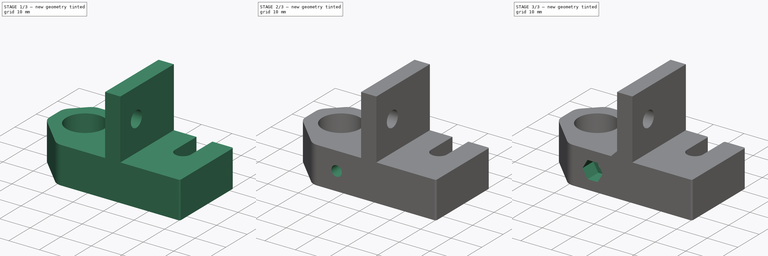
[diagram: build sequence overview — one tinted view per stage of 3, left to right]
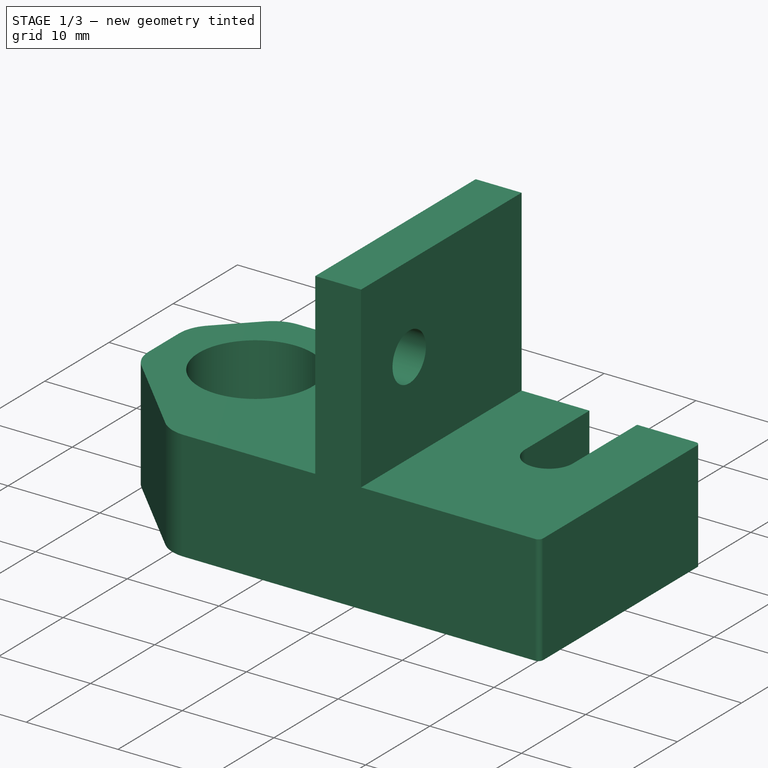
[diagram: stage 1 of 3 — iso view after this stage's code; geometry added in this stage tinted green]
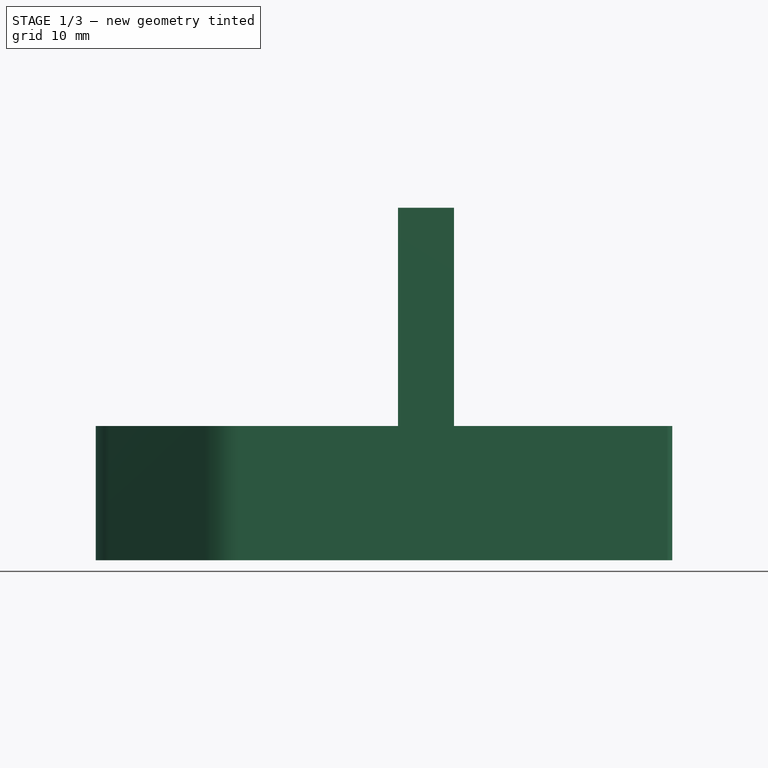
[diagram: stage 1 of 3 — front view after this stage's code; geometry added in this stage tinted green]
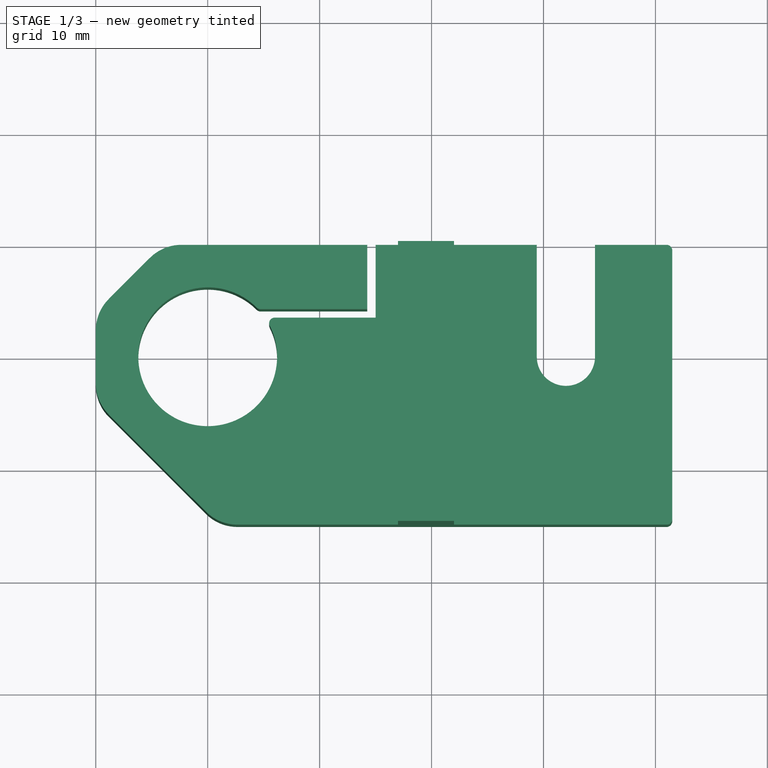
[diagram: stage 1 of 3 — top view after this stage's code; geometry added in this stage tinted green]
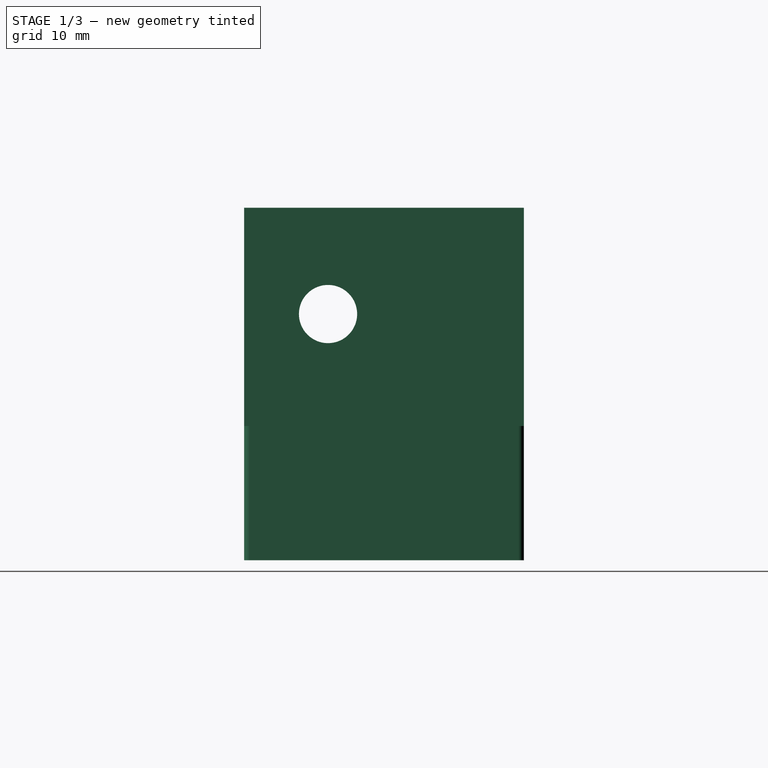
[diagram: stage 1 of 3 — right view after this stage's code; geometry added in this stage tinted green]
FCSTD DOCUMENT  (FreeCAD 0.17R13387 (Git))
Label: Rod12_holder_left_2020
License: All rights reserved
LicenseURL: http://en.wikipedia.org/wiki/All_rights_reserved
objects: Sketcher::SketchObject×6, PartDesign::Pocket×5, PartDesign::Pad×1, PartDesign::Chamfer×1, PartDesign::Fillet×1, PartDesign::Body×1
note: 21 computed .brp shape members not serialized (recipe doc carries the construction recipe); baked Part::Feature solids carry a one-line shape summary decoded from their .brp

FEATURE [Sketcher::SketchObject] Sketch
  sketch-geometry (25):
    g0: ArcOfCircle CenterX=2.65685 CenterY=-11 CenterZ=0 NormalX=0 NormalY=0 NormalZ=1 AngleXU=-1.9635 Radius=4 StartAngle=5.89049 EndAngle=6.67588
    g1: LineSegment StartX=-8.82843 StartY=-5.17157 StartZ=0 EndX=-0.171573 EndY=-13.8284 EndZ=0
    g2: ArcOfCircle CenterX=-6 CenterY=-2.34315 CenterZ=0 NormalX=0 NormalY=0 NormalZ=1 AngleXU=-2.74889 Radius=4 StartAngle=5.89049 EndAngle=6.67588
    g3: LineSegment StartX=-10 StartY=-2.34315 StartZ=0 EndX=-10 EndY=2.34315 EndZ=0
    g4: ArcOfCircle CenterX=-6 CenterY=2.34315 CenterZ=0 NormalX=0 NormalY=0 NormalZ=1 AngleXU=2.74889 Radius=4 StartAngle=5.89049 EndAngle=6.67588
    g5: LineSegment StartX=-5.17157 StartY=8.82843 StartZ=0 EndX=-8.82843 EndY=5.17157 EndZ=0
    g6: ArcOfCircle CenterX=-2.34315 CenterY=6 CenterZ=0 NormalX=0 NormalY=0 NormalZ=1 AngleXU=1.9635 Radius=4 StartAngle=5.89049 EndAngle=6.67588
    g7: LineSegment StartX=-2.34315 StartY=10 StartZ=0 EndX=14.25 EndY=10 EndZ=0
    g8: LineSegment StartX=14.25 StartY=10 StartZ=0 EndX=14.25 EndY=4.25 EndZ=0
    g9: LineSegment StartX=14.25 StartY=4.25 StartZ=0 EndX=4.7252 EndY=4.25 EndZ=0
    g10: ArcOfCircle CenterX=4.7252 CenterY=4.75 CenterZ=0 NormalX=0 NormalY=0 NormalZ=1 AngleXU=-1.96219 Radius=0.5 StartAngle=5.89179 EndAngle=6.67458
    g11: ArcOfCircle CenterX=0 CenterY=0 CenterZ=0 NormalX=0 NormalY=0 NormalZ=1 AngleXU=-3.14159 Radius=6.2 StartAngle=3.92961 EndAngle=9.88904
    g12: ArcOfCircle CenterX=5.99083 CenterY=3 CenterZ=0 NormalX=0 NormalY=0 NormalZ=1 AngleXU=2.58832 Radius=0.5 StartAngle=5.26566 EndAngle=7.30071
    g13: LineSegment StartX=5.99083 StartY=3.5 StartZ=0 EndX=15 EndY=3.5 EndZ=0
    g14: LineSegment StartX=15 StartY=3.5 StartZ=0 EndX=15 EndY=10 EndZ=0
    g15: LineSegment StartX=15 StartY=10 StartZ=0 EndX=29.4 EndY=10 EndZ=0
    g16: ArcOfCircle CenterX=41 CenterY=9.5 CenterZ=0 NormalX=0 NormalY=0 NormalZ=1 AngleXU=0.785398 Radius=0.5 StartAngle=5.49779 EndAngle=7.06844
    g17: LineSegment StartX=41.5 StartY=9.5 StartZ=0 EndX=41.5 EndY=-14.4994 EndZ=0
    g18: ArcOfCircle CenterX=41 CenterY=-14.4994 CenterZ=0 NormalX=0 NormalY=0 NormalZ=1 AngleXU=-0.785398 Radius=0.5 StartAngle=5.49793 EndAngle=7.06859
    g19: LineSegment StartX=41.0001 StartY=-14.9994 StartZ=0 EndX=2.65685 EndY=-15 EndZ=0
    g20: LineSegment StartX=34.6 StartY=10 StartZ=0 EndX=34.6 EndY=-1.32325e-07 EndZ=0
    g21: LineSegment [constr] StartX=34.6 StartY=-1.32325e-07 StartZ=0 EndX=29.4 EndY=-1.32325e-07 EndZ=0
    g22: LineSegment StartX=29.4 StartY=-1.32325e-07 StartZ=0 EndX=29.4 EndY=10 EndZ=0
    g23: ArcOfCircle CenterX=32 CenterY=0 CenterZ=0 NormalX=0 NormalY=0 NormalZ=1 AngleXU=0 Radius=2.6 StartAngle=3.14159 EndAngle=6.28319
    g24: LineSegment StartX=34.6 StartY=10 StartZ=0 EndX=41.0001 EndY=10 EndZ=0
  constraints (43):
    c: Coincident(g0,g1)
    c: Coincident(g1,g2)
    c: Coincident(g2,g3)
    c: Coincident(g3,g4)
    c: Coincident(g4,g5)
    c: Coincident(g5,g6)
    c: Coincident(g6,g7)
    c: Horizontal(g7)
    c: Coincident(g7,g8)
    c: Vertical(g8)
    c: Coincident(g8,g9)
    c: Coincident(g9,g10)
    c: Coincident(g10,g11)
    c: Coincident(g11,g12)
    c: Coincident(g12,g13)
    c: Coincident(g13,g14)
    c: Coincident(g14,g15)
    c: Horizontal(g15)
    c: Vertical(g17)
    c: Coincident(g17,g18)
    c: Coincident(g18,g19)
    c: Coincident(g19,g0)
    c: Radius(g11) = 6.2
    c: Tangent(g16,g17) = 1.5708
    c: Radius(g16) = 0.5
    c: DistanceX(g16) = 41.5
    c: DistanceY(g16) = 9.5
    c: Coincident(g24,g16)
    c: Equal(g18,g16)
    c: Coincident(g20,g21)
    c: Coincident(g21,g22)
    c: Horizontal(g21)
    c: Vertical(g20)
    c: Vertical(g22)
    c: Coincident(g23,g20)
    c: Radius(g23) = 2.6
    c: Coincident(g21,g23)
    c: PointOnObject(g23,g-1)
    c: Tangent(g22,g23)
    c: Coincident(g15,g22)
    c: Coincident(g24,g20)
    c: Tangent(g15,g24)
    c: DistanceX(g23) = 32
FEATURE [PartDesign::Pad] Pad
  Length = 31.5
  Length2 = 100
  Profile = -> Sketch
  Type = 0
FEATURE [Sketcher::SketchObject] Sketch001
  MapMode = 5
  Placement = pos=(0,0,31.5) rot=(0,0,1;0rad)
  Support = -> [Pad]
  sketch-geometry (8):
    g0: LineSegment StartX=22 StartY=15 StartZ=0 EndX=42 EndY=15 EndZ=0
    g1: LineSegment StartX=42 StartY=15 StartZ=0 EndX=42 EndY=-15 EndZ=0
    g2: LineSegment StartX=42 StartY=-15 StartZ=0 EndX=22 EndY=-15 EndZ=0
    g3: LineSegment StartX=22 StartY=-15 StartZ=0 EndX=22 EndY=15 EndZ=0
    g4: LineSegment StartX=-10 StartY=15 StartZ=0 EndX=17 EndY=15 EndZ=0
    g5: LineSegment StartX=17 StartY=15 StartZ=0 EndX=17 EndY=-15 EndZ=0
    g6: LineSegment StartX=17 StartY=-15 StartZ=0 EndX=-10 EndY=-15 EndZ=0
    g7: LineSegment StartX=-10 StartY=-15 StartZ=0 EndX=-10 EndY=15 EndZ=0
  constraints (24):
    c: Coincident(g0,g1)
    c: Coincident(g1,g2)
    c: Coincident(g2,g3)
    c: Coincident(g3,g0)
    c: Horizontal(g0)
    c: Horizontal(g2)
    c: Vertical(g1)
    c: Vertical(g3)
    c: Symmetric(g0,g2,g-1)
    c: DistanceY(g1,g1) = 30
    c: DistanceX(g2) = 22
    c: DistanceX(g2,g2) = 20
    c: Coincident(g4,g5)
    c: Coincident(g5,g6)
    c: Coincident(g6,g7)
    c: Coincident(g7,g4)
    c: Horizontal(g4)
    c: Horizontal(g6)
    c: Vertical(g5)
    c: Vertical(g7)
    c: PointOnObject(g5,g2)
    c: Equal(g5,g3)
    c: DistanceX(g4,g0) = 5
    c: DistanceX(g4,g4) = 27
FEATURE [PartDesign::Pocket] Pocket
  BaseFeature = -> Pad
  Length = 19.5
  Length2 = 100
  Profile = -> Sketch001
  Type = 0
FEATURE [Sketcher::SketchObject] Sketch002
  MapMode = 5
  Placement = pos=(17,0,0) rot=(0.57735,-0.57735,-0.57735;2.0944rad)
  Support = -> [Pocket]
  sketch-geometry (1):
    g0: Circle CenterX=7.5 CenterY=22 CenterZ=0 NormalX=0 NormalY=0 NormalZ=1 AngleXU=0 Radius=2.6
  constraints (3):
    c: DistanceX(g0) = 7.5
    c: DistanceY(g0) = 22
    c: Radius(g0) = 2.6
FEATURE [PartDesign::Pocket] Pocket001
  BaseFeature = -> Pocket
  Length = 5
  Length2 = 100
  Profile = -> Sketch002
  Type = 1
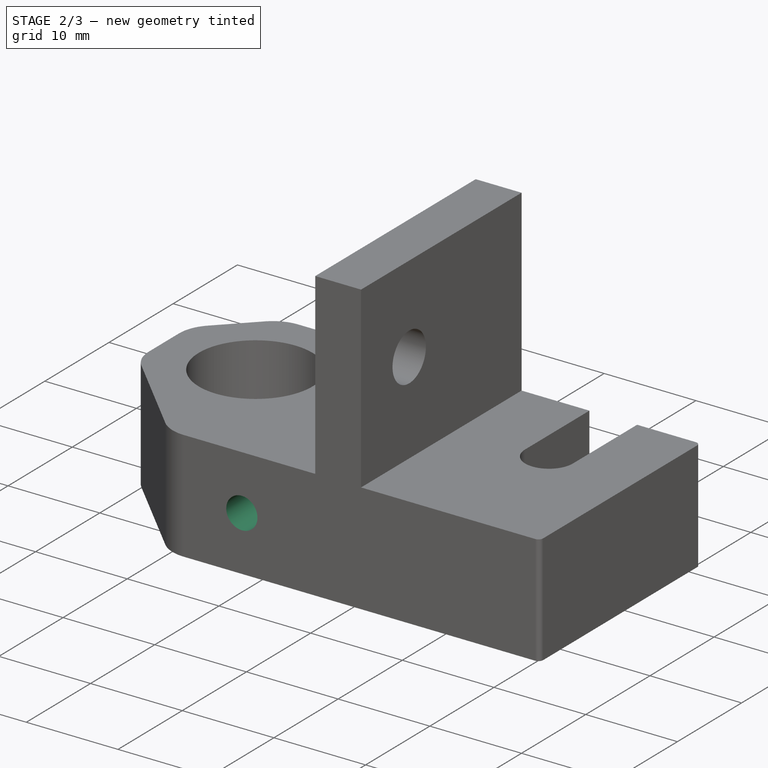
[diagram: stage 2 of 3 — iso view after this stage's code; geometry added in this stage tinted green]
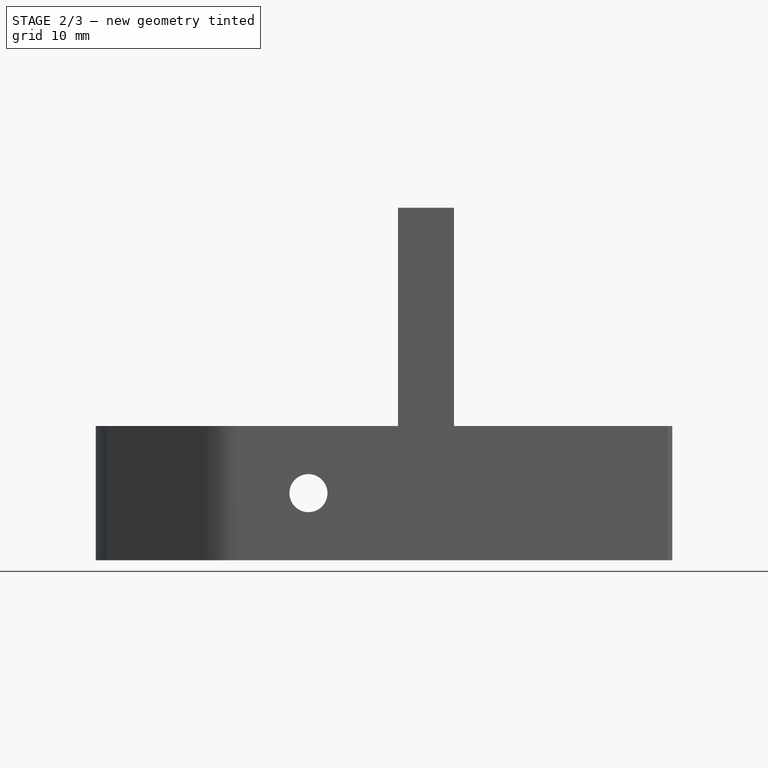
[diagram: stage 2 of 3 — front view after this stage's code; geometry added in this stage tinted green]
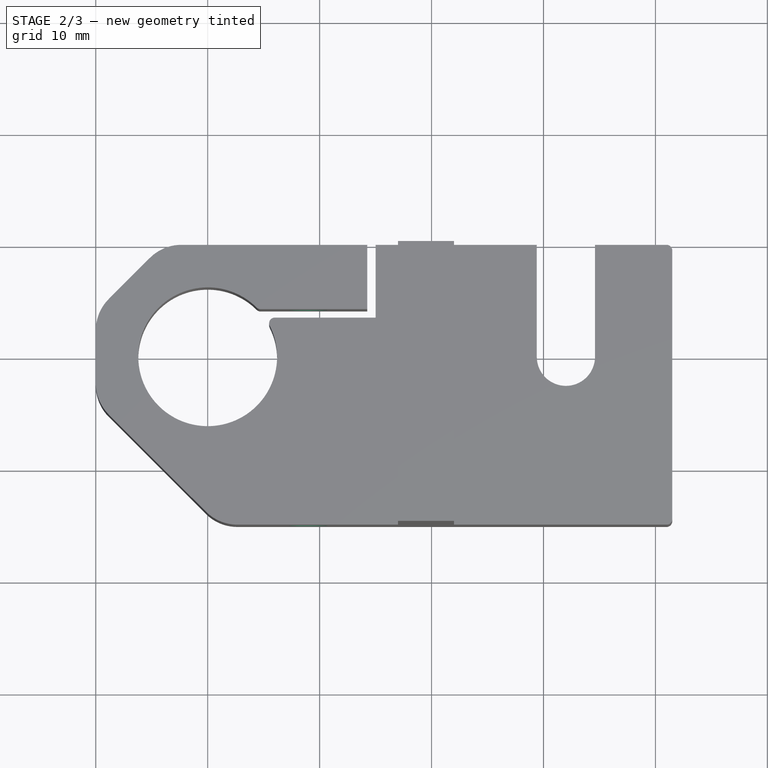
[diagram: stage 2 of 3 — top view after this stage's code; geometry added in this stage tinted green]
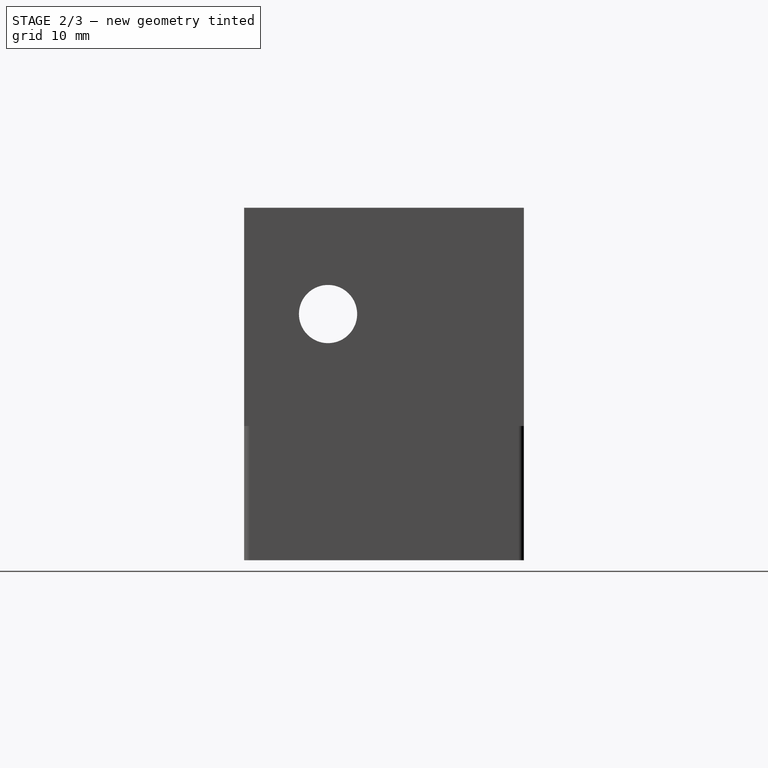
[diagram: stage 2 of 3 — right view after this stage's code; geometry added in this stage tinted green]
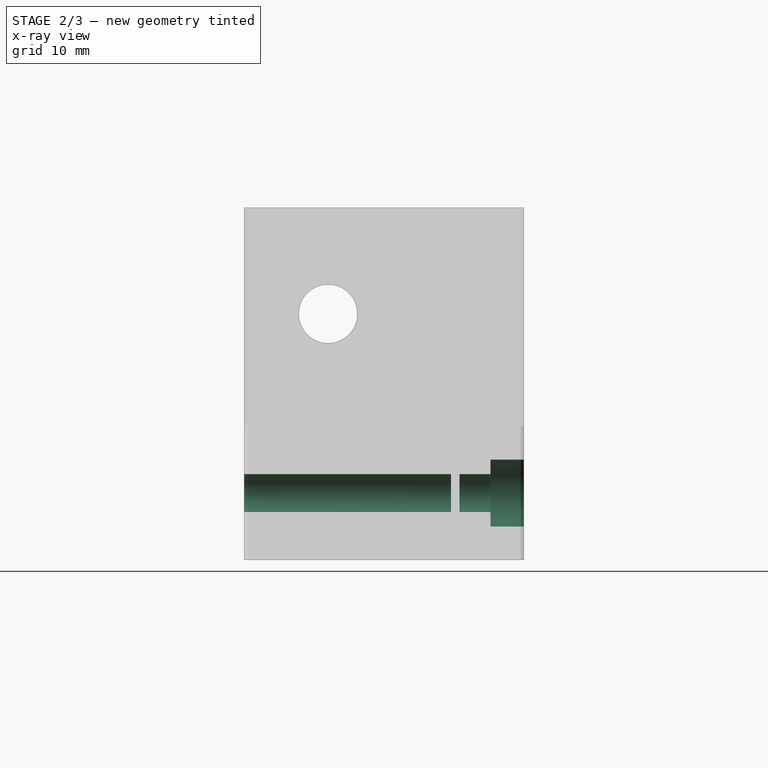
[diagram: stage 2 of 3 — x-ray composite at the right view; earlier geometry ghosted, this stage's added geometry solid]
FEATURE [Sketcher::SketchObject] Sketch003
  MapMode = 5
  Placement = pos=(0,10,0) rot=(0,0.707107,0.707107;3.14159rad)
  Support = -> [Pocket001]
  sketch-geometry (1):
    g0: Circle CenterX=-9 CenterY=6 CenterZ=0 NormalX=0 NormalY=0 NormalZ=1 AngleXU=0 Radius=1.7
  constraints (3):
    c: DistanceX(g0) = -9
    c: DistanceY(g0) = 6
    c: Radius(g0) = 1.7
FEATURE [PartDesign::Pocket] Pocket002
  BaseFeature = -> Pocket001
  Length = 5
  Length2 = 100
  Profile = -> Sketch003
  Type = 1
FEATURE [Sketcher::SketchObject] Sketch004
  MapMode = 5
  Placement = pos=(0,10,0) rot=(0,0.707107,0.707107;3.14159rad)
  Support = -> [Pocket002]
  sketch-geometry (1):
    g0: Circle CenterX=-9 CenterY=6 CenterZ=0 NormalX=0 NormalY=0 NormalZ=1 AngleXU=0 Radius=3
  constraints (3):
    c: Radius(g0) = 3
    c: DistanceX(g0) = -9
    c: DistanceY(g0) = 6
FEATURE [PartDesign::Pocket] Pocket003
  BaseFeature = -> Pocket002
  Length = 3
  Length2 = 100
  Profile = -> Sketch004
  Type = 0
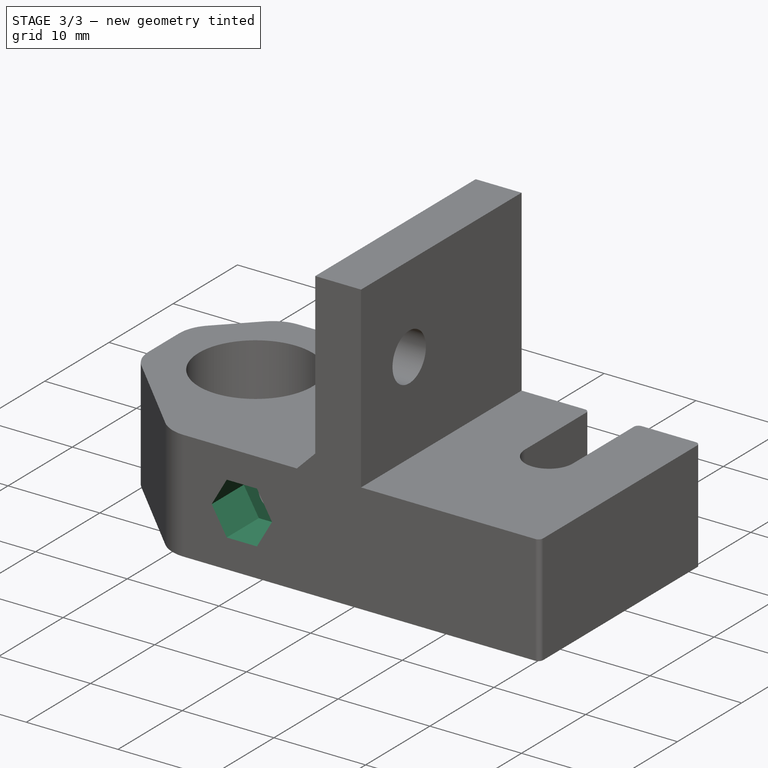
[diagram: stage 3 of 3 — iso view after this stage's code; geometry added in this stage tinted green]
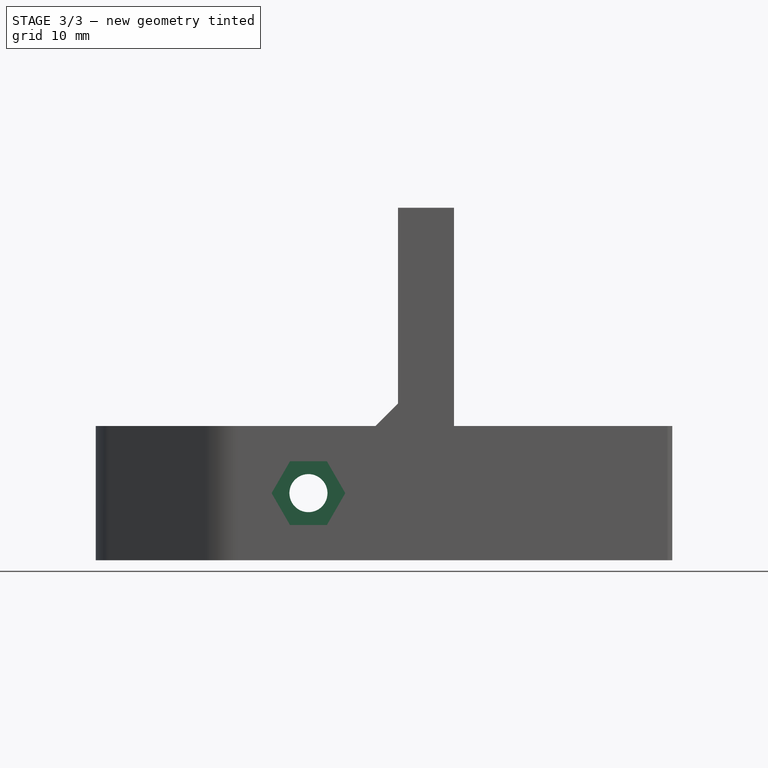
[diagram: stage 3 of 3 — front view after this stage's code; geometry added in this stage tinted green]
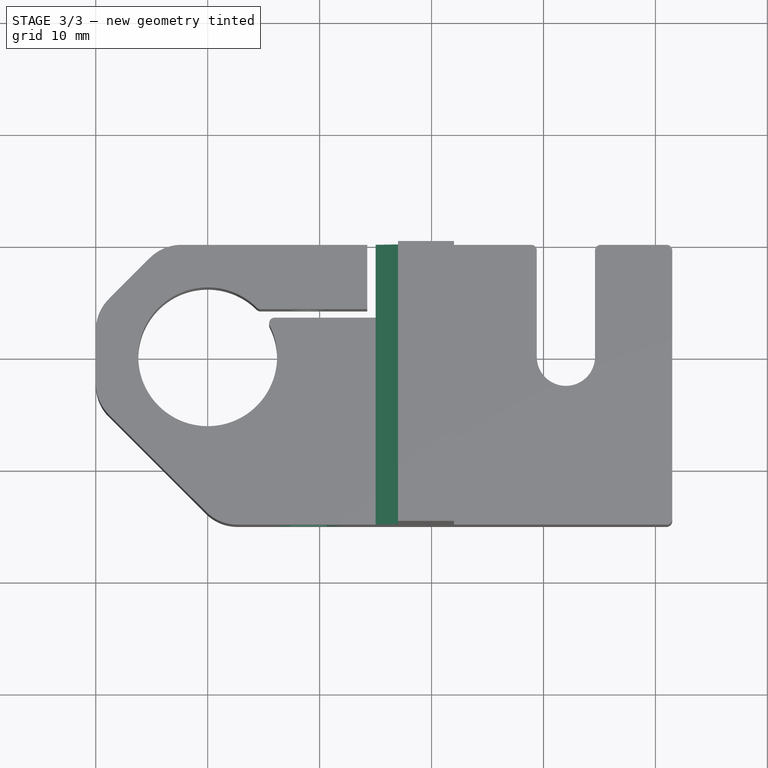
[diagram: stage 3 of 3 — top view after this stage's code; geometry added in this stage tinted green]
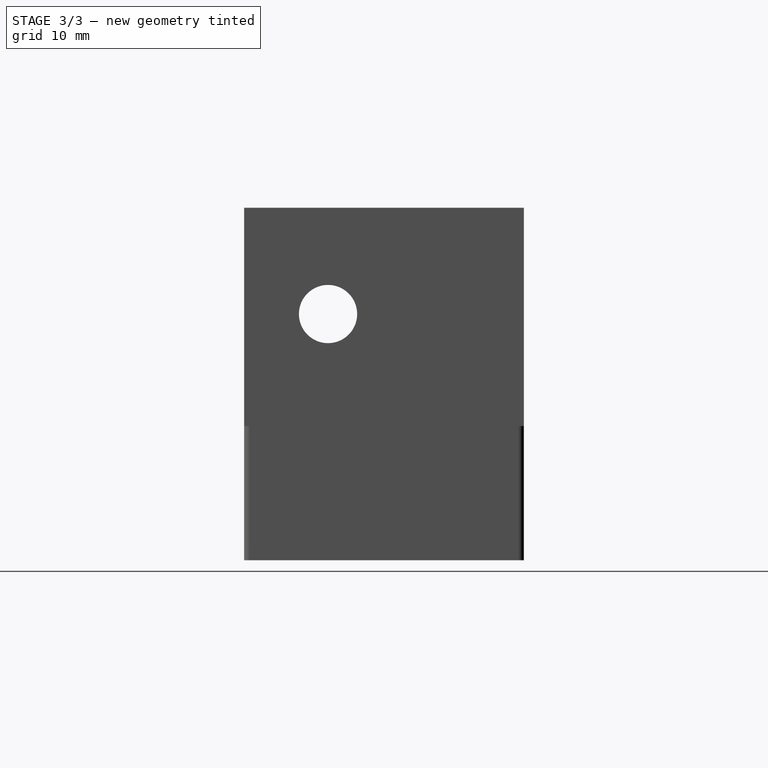
[diagram: stage 3 of 3 — right view after this stage's code; geometry added in this stage tinted green]
FEATURE [Sketcher::SketchObject] Sketch005
  MapMode = 5
  Placement = pos=(0.000226165,-15,0) rot=(1,8e-06,8e-06;1.5708rad)
  Support = -> [Pocket003]
  sketch-geometry (7):
    g0: LineSegment StartX=10.6454 StartY=3.15 StartZ=0 EndX=12.2909 EndY=6 EndZ=0
    g1: LineSegment StartX=12.2909 StartY=6 StartZ=0 EndX=10.6454 EndY=8.85 EndZ=0
    g2: LineSegment StartX=10.6454 StartY=8.85 StartZ=0 EndX=7.35455 EndY=8.85 EndZ=0
    g3: LineSegment StartX=7.35455 StartY=8.85 StartZ=0 EndX=5.7091 EndY=6 EndZ=0
    g4: LineSegment StartX=5.7091 StartY=6 StartZ=0 EndX=7.35455 EndY=3.15 EndZ=0
    g5: LineSegment StartX=7.35455 StartY=3.15 StartZ=0 EndX=10.6454 EndY=3.15 EndZ=0
    g6: Circle [constr] CenterX=9 CenterY=6 CenterZ=0 NormalX=0 NormalY=0 NormalZ=1 AngleXU=0 Radius=3.2909
  constraints (17):
    c: Coincident(g0,g1)
    c: Coincident(g1,g2)
    c: Coincident(g2,g3)
    c: Coincident(g3,g4)
    c: Coincident(g4,g5)
    c: Coincident(g5,g0)
    c: Equal(g0, g1-g5) x5
    c: PointOnObject(g0,g6)
    c: PointOnObject(g1,g6)
    c: PointOnObject(g2,g6)
    c: PointOnObject(g3,g6)
    c: PointOnObject(g4,g6)
    c: PointOnObject(g5,g6)
    c: DistanceX(g6) = 9
    c: DistanceY(g6) = 6
    c: Horizontal(g5)
    c: DistanceY(g4,g2) = 5.7
FEATURE [PartDesign::Pocket] Pocket004
  BaseFeature = -> Pocket003
  Length = 5
  Length2 = 100
  Profile = -> Sketch005
  Type = 0
FEATURE [PartDesign::Chamfer] Chamfer
  Base = -> Pocket004 [Edge94]
  BaseFeature = -> Pocket004
  Size = 2
FEATURE [PartDesign::Fillet] Fillet
  Base = -> Chamfer [Edge97,Edge8]
  BaseFeature = -> Chamfer
  Radius = 0.5
FEATURE [PartDesign::Body] Body
  Group = -> [Sketch,Pad,Sketch001,Pocket,Sketch002,Pocket001,Sketch003,Pocket002,Sketch004,Pocket003,Sketch005,Pocket004,Chamfer,Fillet]
  Origin = -> Origin
  Tip = -> Fillet
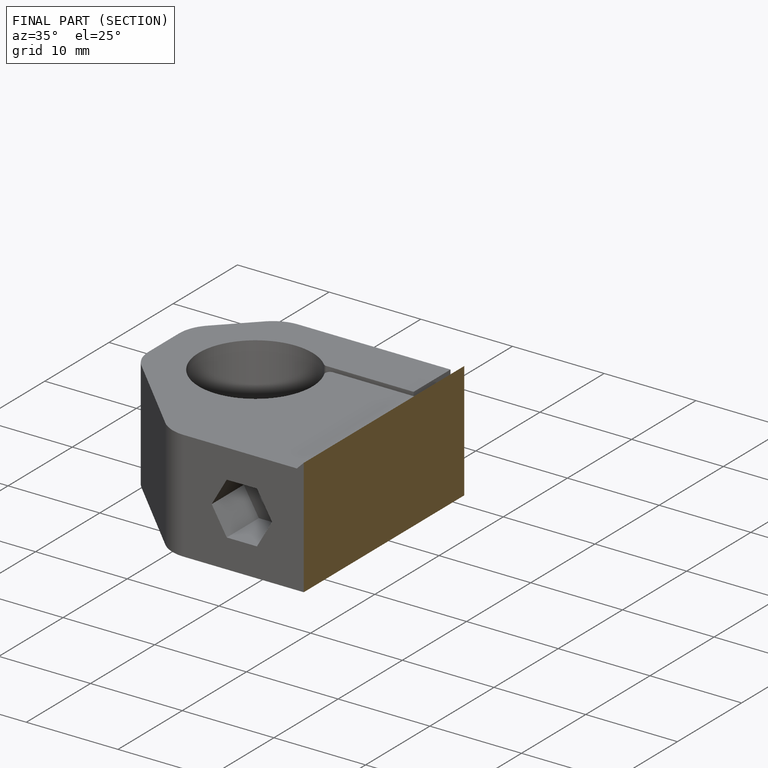
[diagram: finished part — half-section view (interior)]
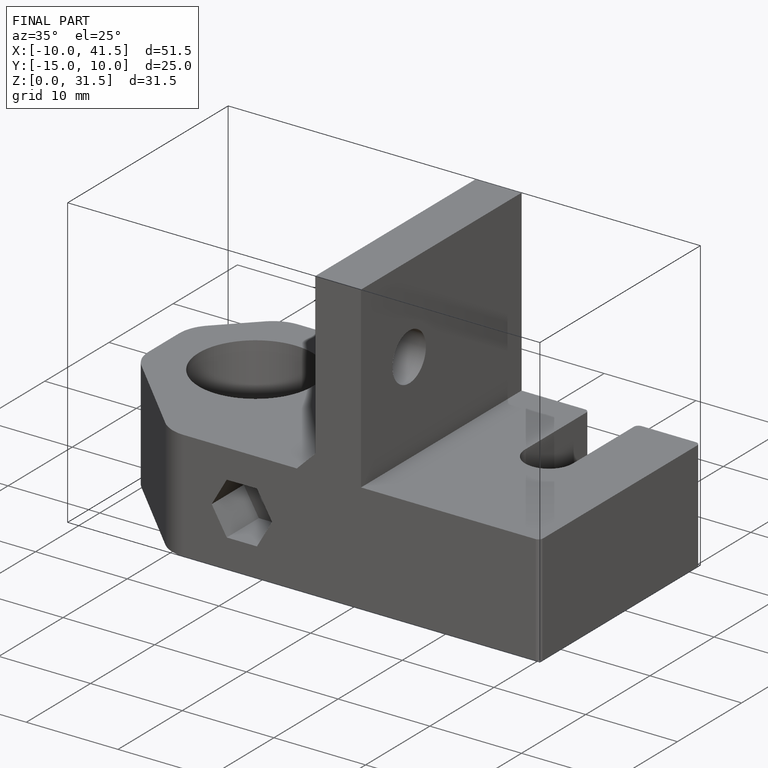
[diagram: finished part — iso view with bounding-box wireframe]
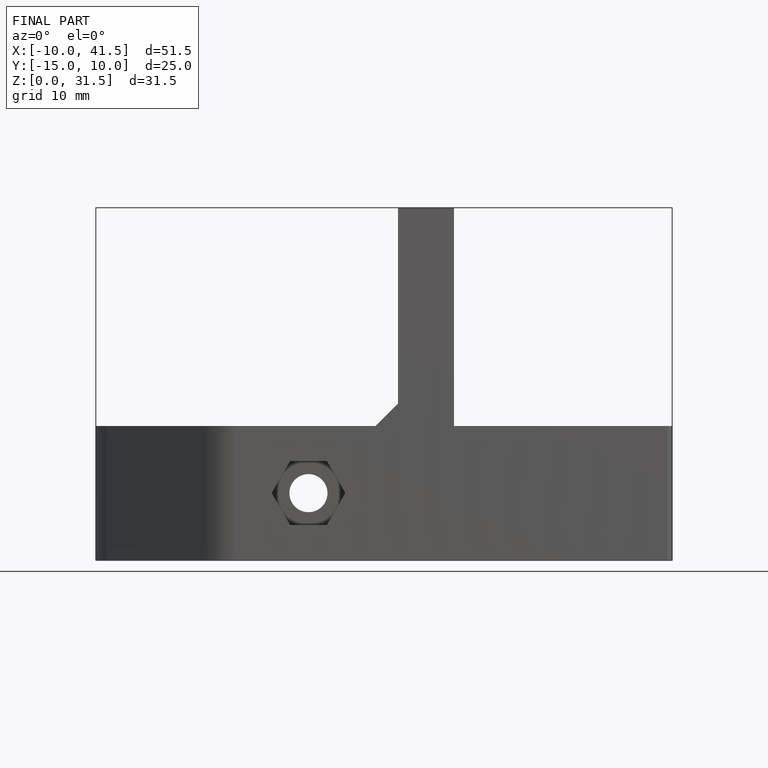
[diagram: finished part — front view with bounding-box wireframe]
